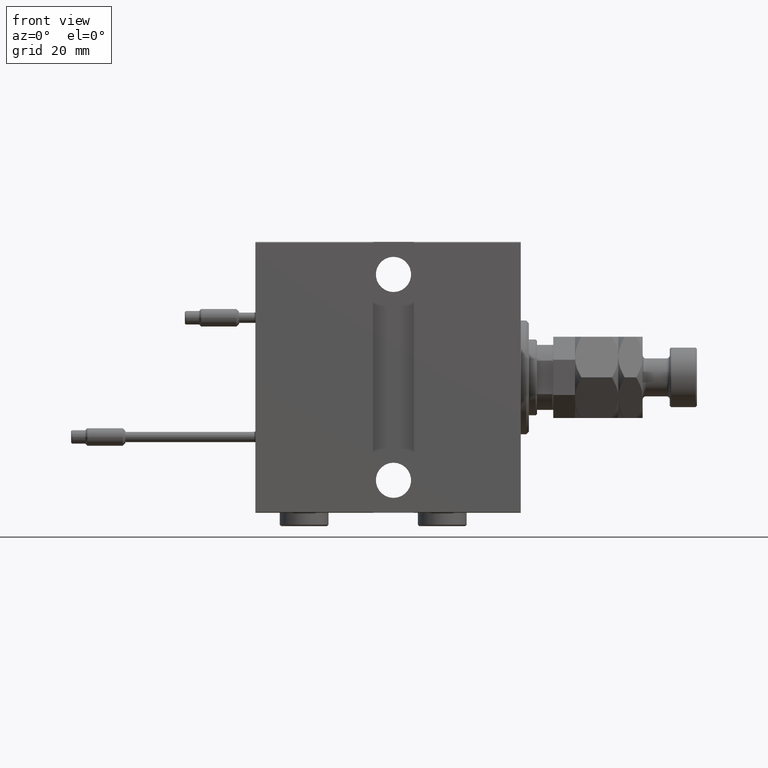
[diagram: clean part render]
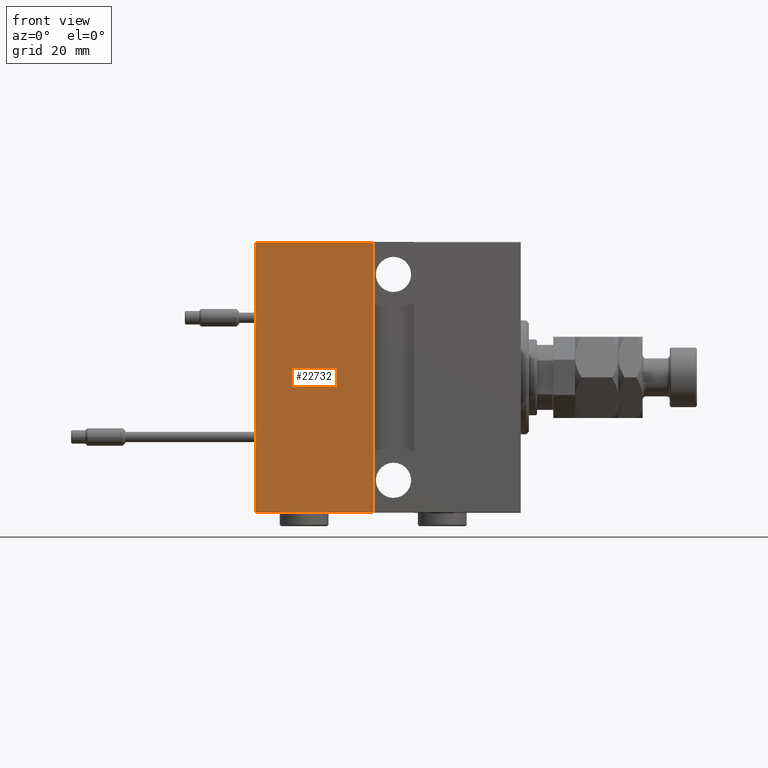
[diagram: same view with one face highlighted and labeled with its STEP entity id]
A machine part, front view. The second image highlights one B-rep face of the part: STEP entity #22732.
In plain terms, the highlighted planar face has unit normal (-0, 1, -0).
Its self-contained STEP definition (entity closure, byte-faithful):
#551 = VERTEX_POINT ( 'NONE', #41288 ) ;
#1824 = CARTESIAN_POINT ( 'NONE',  ( 54.50000000000001421, 37.50000000000000000, 49.70000000000000284 ) ) ;
#4098 = EDGE_CURVE ( 'NONE', #18304, #35403, #14868, .T. ) ;
#4105 = ORIENTED_EDGE ( 'NONE', *, *, #4098, .F. ) ;
#5563 = VECTOR ( 'NONE', #42478, 1000.000000000000000 ) ;
#8071 = PLANE ( 'NONE',  #41411 ) ;
#9601 = EDGE_CURVE ( 'NONE', #18304, #551, #33271, .T. ) ;
#9682 = EDGE_CURVE ( 'NONE', #34302, #35403, #22271, .T. ) ;
#9779 = ORIENTED_EDGE ( 'NONE', *, *, #25479, .F. ) ;
#12543 = ORIENTED_EDGE ( 'NONE', *, *, #9601, .T. ) ;
#12897 = FACE_OUTER_BOUND ( 'NONE', #14706, .T. ) ;
#13443 = ORIENTED_EDGE ( 'NONE', *, *, #9682, .T. ) ;
#14706 = EDGE_LOOP ( 'NONE', ( #9779, #13443, #4105, #12543 ) ) ;
#14868 = LINE ( 'NONE', #51299, #5563 ) ;
#16953 = DIRECTION ( 'NONE',  ( 0.000000000000000000, -1.387778780781445182E-16, 1.000000000000000000 ) ) ;
#18304 = VERTEX_POINT ( 'NONE', #1824 ) ;
#19362 = CARTESIAN_POINT ( 'NONE',  ( 54.50000000000000000, 37.50000000000000000, -49.70000000000000284 ) ) ;
#21720 = VECTOR ( 'NONE', #16953, 1000.000000000000000 ) ;
#22271 = LINE ( 'NONE', #52432, #37605 ) ;
#22732 = ADVANCED_FACE ( 'NONE', ( #12897 ), #8071, .F. ) ;
#25222 = DIRECTION ( 'NONE',  ( 0.000000000000000000, 1.387778780781445182E-16, -1.000000000000000000 ) ) ;
#25261 = LINE ( 'NONE', #42390, #21720 ) ;
#25479 = EDGE_CURVE ( 'NONE', #34302, #551, #25261, .T. ) ;
#29225 = CARTESIAN_POINT ( 'NONE',  ( 98.00000000000000000, 37.50000000000000711, -50.00000000000000711 ) ) ;
#33271 = LINE ( 'NONE', #49601, #50451 ) ;
#33798 = DIRECTION ( 'NONE',  ( 1.000000000000000000, 0.000000000000000000, 0.000000000000000000 ) ) ;
#34302 = VERTEX_POINT ( 'NONE', #43701 ) ;
#35403 = VERTEX_POINT ( 'NONE', #19362 ) ;
#37530 = DIRECTION ( 'NONE',  ( 0.000000000000000000, -1.000000000000000000, -1.387778780781445182E-16 ) ) ;
#37605 = VECTOR ( 'NONE', #39594, 1000.000000000000000 ) ;
#39594 = DIRECTION ( 'NONE',  ( -1.000000000000000000, 0.000000000000000000, 0.000000000000000000 ) ) ;
#41288 = CARTESIAN_POINT ( 'NONE',  ( 98.00000000000000000, 37.49999999999999289, 49.70000000000000284 ) ) ;
#41411 = AXIS2_PLACEMENT_3D ( 'NONE', #29225, #37530, #25222 ) ;
#42390 = CARTESIAN_POINT ( 'NONE',  ( 98.00000000000000000, 37.50000000000000711, -50.00000000000000711 ) ) ;
#42478 = DIRECTION ( 'NONE',  ( -1.387778780781445676E-16, -0.000000000000000000, -1.000000000000000000 ) ) ;
#43701 = CARTESIAN_POINT ( 'NONE',  ( 98.00000000000000000, 37.50000000000000711, -49.70000000000000284 ) ) ;
#49601 = CARTESIAN_POINT ( 'NONE',  ( 98.00000000000000000, 37.49999999999999289, 49.70000000000000284 ) ) ;
#50451 = VECTOR ( 'NONE', #33798, 1000.000000000000000 ) ;
#51299 = CARTESIAN_POINT ( 'NONE',  ( 54.50000000000000000, 37.50000000000000000, -50.00000000000000711 ) ) ;
#52432 = CARTESIAN_POINT ( 'NONE',  ( 98.00000000000000000, 37.50000000000000711, -49.70000000000000284 ) ) ;